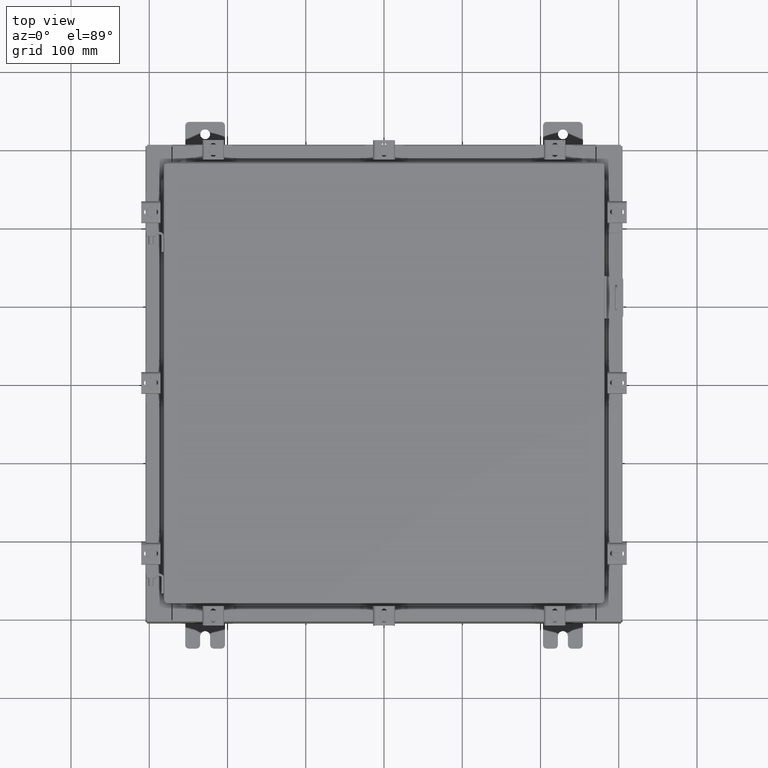
[diagram: clean part render]
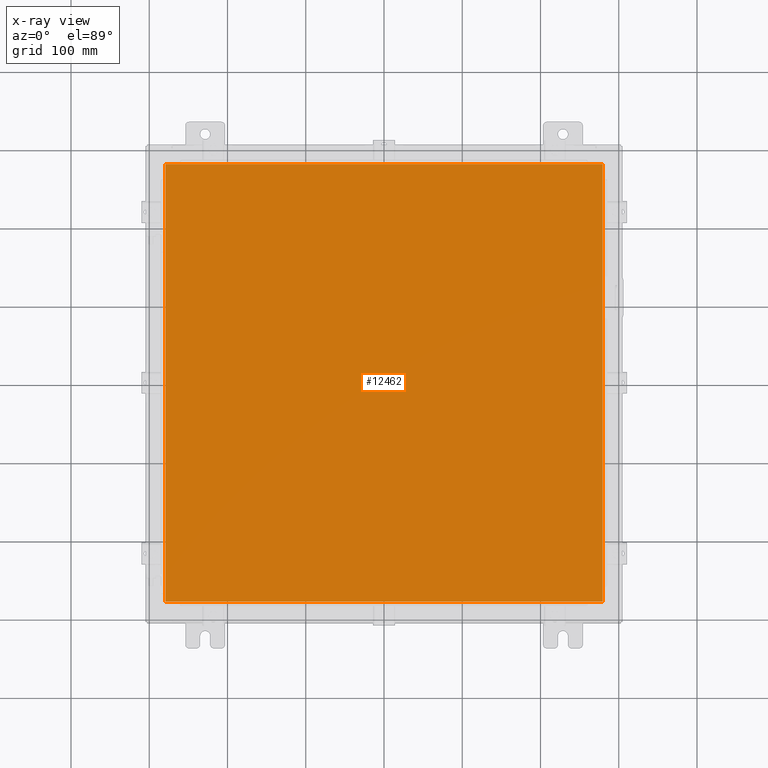
[diagram: x-ray — body ghosted, one internal face saturated and labeled with its STEP entity id]
A machine part, top view, then the same camera in x-ray: the body is ghosted and one INTERNAL B-rep face — a face not visible from any outside direction — is saturated and labeled: STEP entity #12462.
In plain terms, the highlighted planar face has unit normal (0, 0, -1).
Its self-contained STEP definition (entity closure, byte-faithful):
#93 = PLANE ( 'NONE',  #3412 ) ;
#456 = CARTESIAN_POINT ( 'NONE',  ( 0.0000000000000000000, 0.0000000000000000000, -0.07470000000000015500 ) ) ;
#746 = CARTESIAN_POINT ( 'NONE',  ( 11.00629999999999400, -11.00630000000000100, -0.07470000000000015500 ) ) ;
#898 = CARTESIAN_POINT ( 'NONE',  ( 11.00629999999999400, -11.00630000000000100, -0.07470000000000015500 ) ) ;
#1712 = VECTOR ( 'NONE', #7441, 39.37007874015748100 ) ;
#2193 = DIRECTION ( 'NONE',  ( -1.000000000000000000, 0.0000000000000000000, -0.0000000000000000000 ) ) ;
#2523 = LINE ( 'NONE', #746, #15888 ) ;
#3083 = DIRECTION ( 'NONE',  ( 1.000000000000000000, -0.0000000000000000000, -0.0000000000000000000 ) ) ;
#3181 = EDGE_CURVE ( 'NONE', #15152, #10132, #7328, .T. ) ;
#3412 = AXIS2_PLACEMENT_3D ( 'NONE', #456, #12613, #2193 ) ;
#3778 = ORIENTED_EDGE ( 'NONE', *, *, #15717, .F. ) ;
#4683 = ORIENTED_EDGE ( 'NONE', *, *, #14892, .F. ) ;
#5142 = EDGE_CURVE ( 'NONE', #14253, #18884, #6454, .T. ) ;
#6189 = FACE_OUTER_BOUND ( 'NONE', #10512, .T. ) ;
#6311 = LINE ( 'NONE', #14357, #1712 ) ;
#6454 = LINE ( 'NONE', #13488, #11068 ) ;
#6589 = CARTESIAN_POINT ( 'NONE',  ( 11.00629999999999400, 11.00629999999999600, -0.07470000000000015500 ) ) ;
#7328 = LINE ( 'NONE', #14346, #20729 ) ;
#7441 = DIRECTION ( 'NONE',  ( 0.0000000000000000000, -1.000000000000000000, 0.0000000000000000000 ) ) ;
#10132 = VERTEX_POINT ( 'NONE', #17725 ) ;
#10512 = EDGE_LOOP ( 'NONE', ( #4683, #22212, #3778, #11890 ) ) ;
#11068 = VECTOR ( 'NONE', #3083, 39.37007874015748100 ) ;
#11371 = CARTESIAN_POINT ( 'NONE',  ( -11.00630000000000300, -11.00630000000000100, -0.07470000000000015500 ) ) ;
#11890 = ORIENTED_EDGE ( 'NONE', *, *, #3181, .F. ) ;
#12462 = ADVANCED_FACE ( 'NONE', ( #6189 ), #93, .T. ) ;
#12613 = DIRECTION ( 'NONE',  ( 0.0000000000000000000, 0.0000000000000000000, -1.000000000000000000 ) ) ;
#13488 = CARTESIAN_POINT ( 'NONE',  ( -11.00630000000000300, -11.00630000000000100, -0.07470000000000015500 ) ) ;
#14253 = VERTEX_POINT ( 'NONE', #11371 ) ;
#14346 = CARTESIAN_POINT ( 'NONE',  ( 11.00629999999999400, 11.00629999999999600, -0.07470000000000015500 ) ) ;
#14357 = CARTESIAN_POINT ( 'NONE',  ( -11.00630000000000300, 11.00629999999999600, -0.07470000000000015500 ) ) ;
#14892 = EDGE_CURVE ( 'NONE', #18884, #15152, #2523, .T. ) ;
#15152 = VERTEX_POINT ( 'NONE', #6589 ) ;
#15717 = EDGE_CURVE ( 'NONE', #10132, #14253, #6311, .T. ) ;
#15888 = VECTOR ( 'NONE', #21619, 39.37007874015748100 ) ;
#17725 = CARTESIAN_POINT ( 'NONE',  ( -11.00630000000000300, 11.00629999999999600, -0.07470000000000015500 ) ) ;
#18884 = VERTEX_POINT ( 'NONE', #898 ) ;
#20729 = VECTOR ( 'NONE', #21402, 39.37007874015748100 ) ;
#21402 = DIRECTION ( 'NONE',  ( -1.000000000000000000, -0.0000000000000000000, -0.0000000000000000000 ) ) ;
#21619 = DIRECTION ( 'NONE',  ( 0.0000000000000000000, 1.000000000000000000, 0.0000000000000000000 ) ) ;
#22212 = ORIENTED_EDGE ( 'NONE', *, *, #5142, .F. ) ;